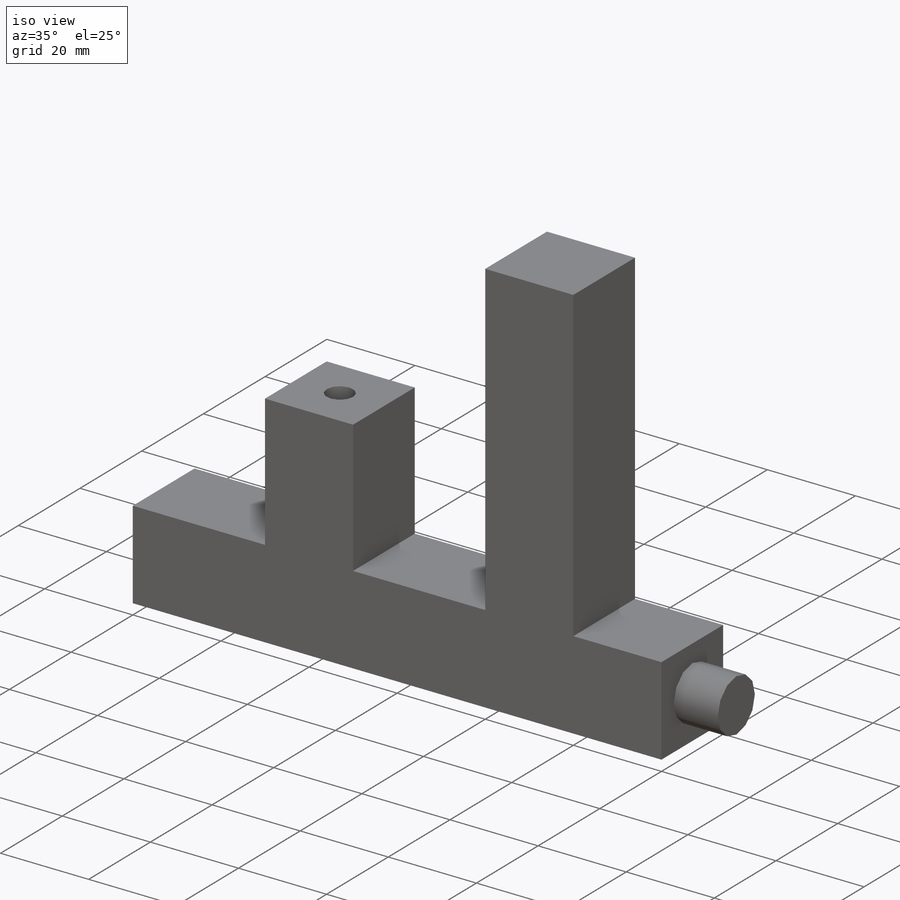
[diagram: iso view]
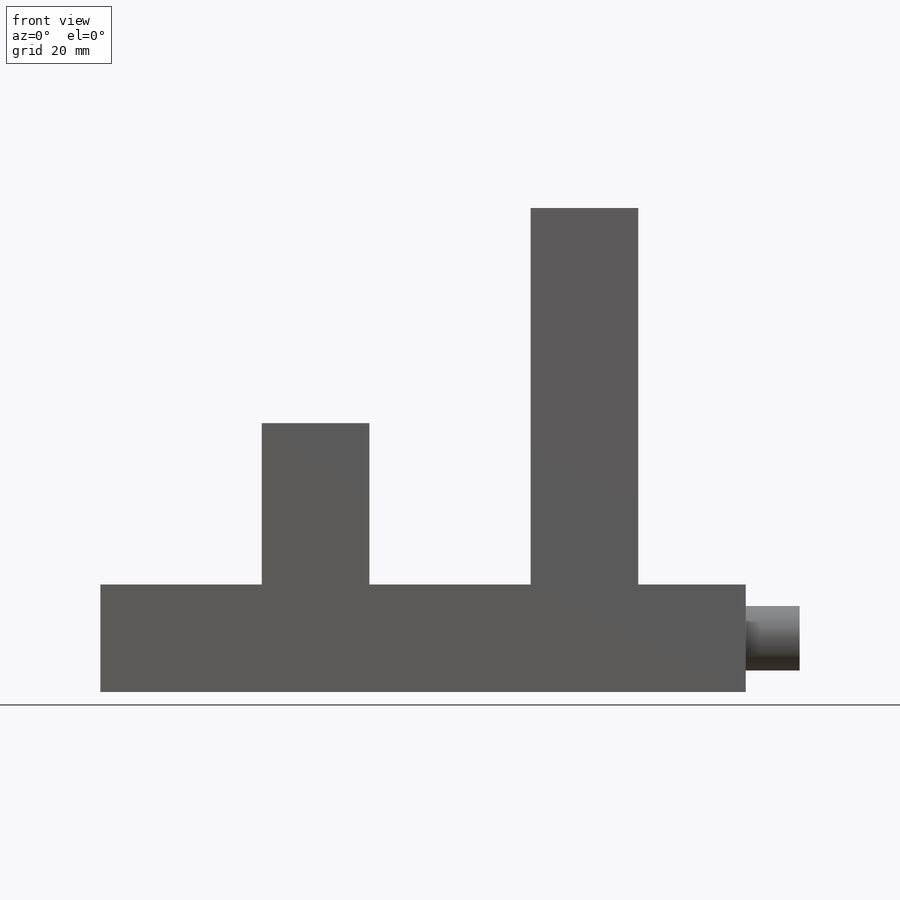
[diagram: front view]
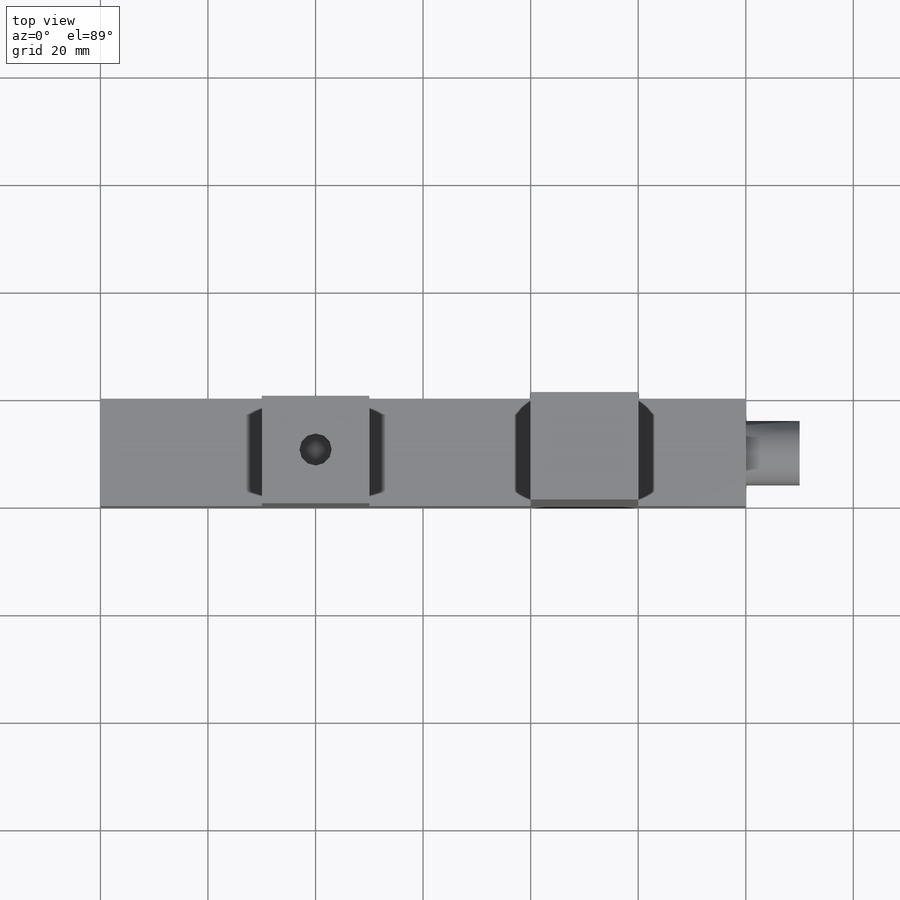
[diagram: top view]
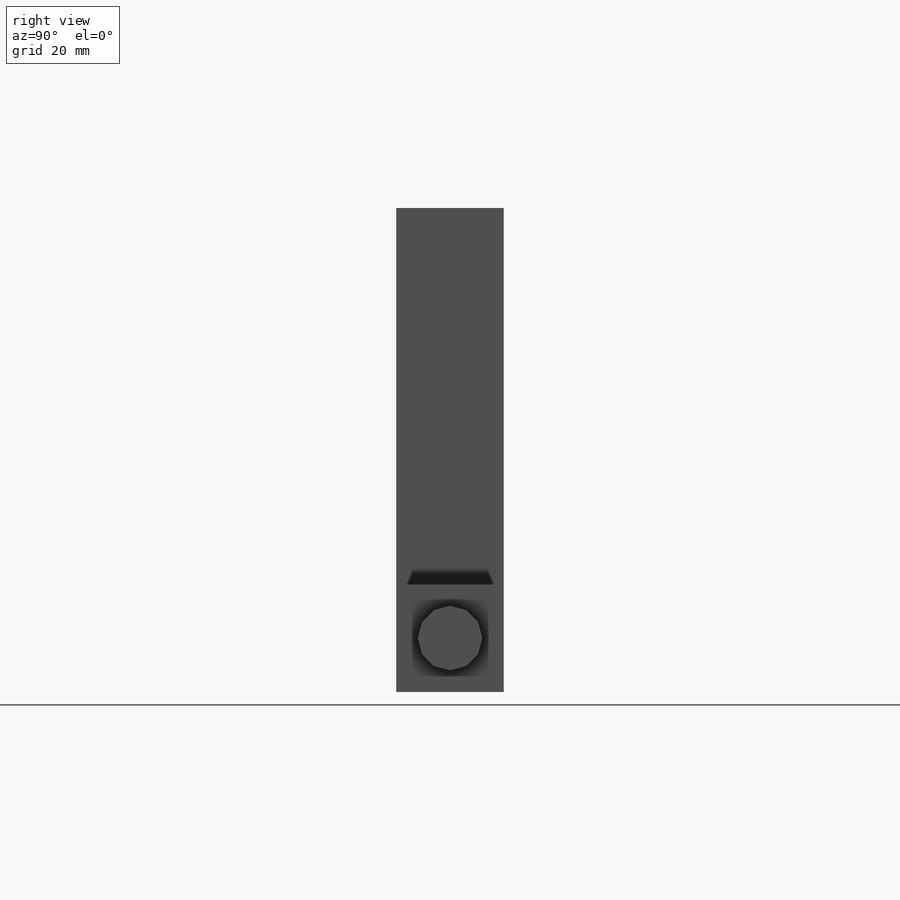
[diagram: right view]
SOLIDWORKS PART (.sldprt)
format: sldprt  version: not decoded by parser v0  size: 146,944 bytes
history: native  units: mm
features: sketch x3, cut_extrude x2, material x1, extrude x1 (+14 scaffold rows collapsed)
feature tree (21):
  scaffold x14  (default folders/planes/origin — collapsed)
  material  "Material <not specified>"
  sketch  "Sketch1"  dims[c1.D1=20.0mm c1.D2=20.0mm c1.D3=30.0mm c1.D4=70.0mm c1.D5=80.0mm c1.D6=75.0mm c2.D5=20.0mm c2.D7=80.0mm c2.D8=40.0mm c2.D9=60.0mm c3.D8=60.0mm c3.D6=20.0mm c4.D8=20.0mm c4.D9=20.0mm c4.D10=20.0mm c4.D11=20.0mm c5.D10=20.0mm c5.D5=30.0mm c5.D8=30.0mm c5.D7=80.0mm c5.D6=130.0mm]
  extrude  "Extrude1"  Depth=20mm
  sketch  "Sketch2"  dims[D1=6.0mm]
  cut_extrude  "Cut-Extrude2"  Depth=10mm
  sketch  "Sketch3"  dims[D1=~6.483291mm]
  cut_extrude  "Cut-Extrude3"  Depth=10mm
decode coverage: 6 of 6 modeling features carry decoded parameters
note: ~ marks probable driven/reference dimensions
note: suppression state not decoded; provenance and decode notes live in map.json
